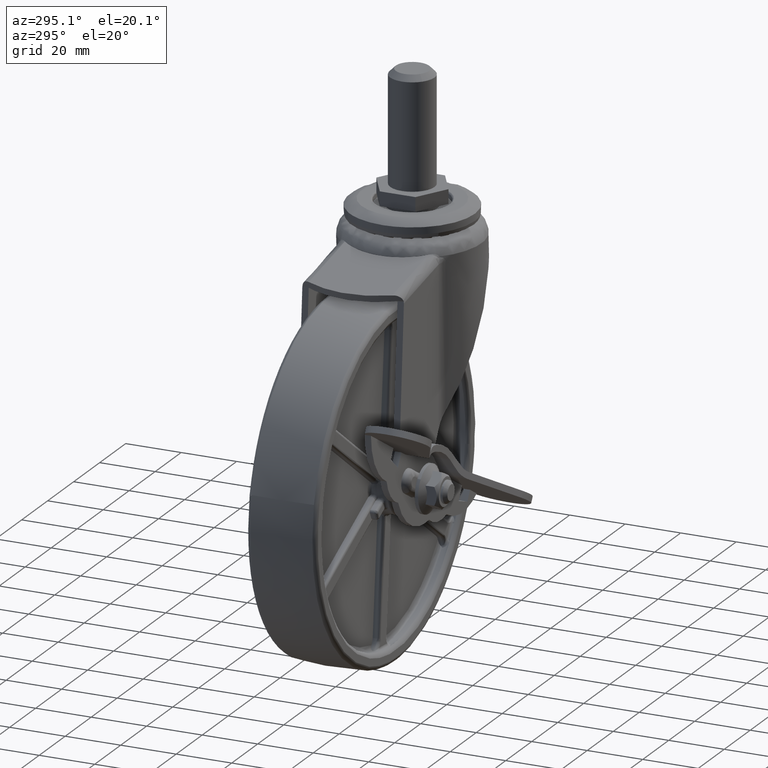
[diagram: clean part render]
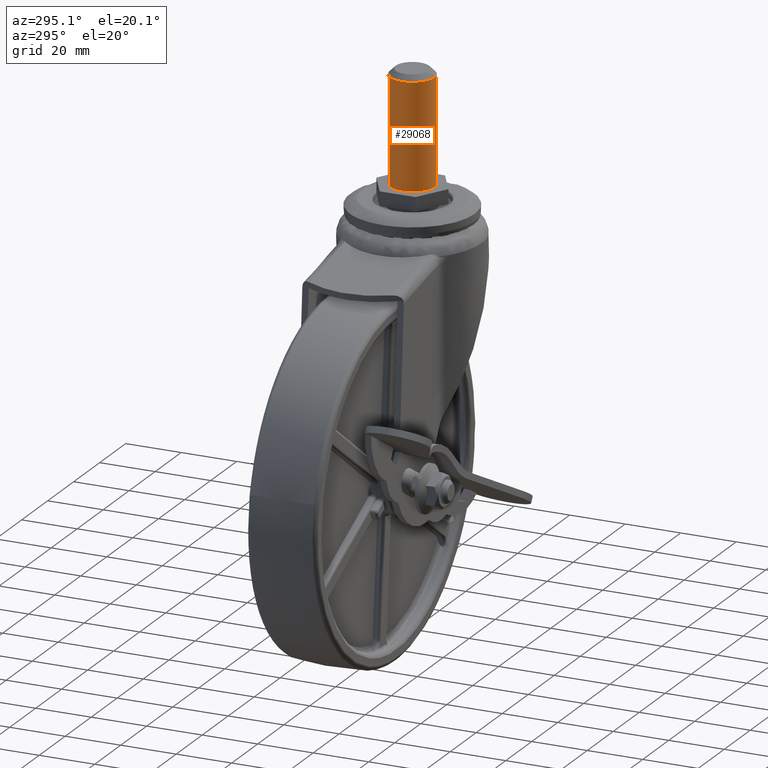
[diagram: same view with one face highlighted and labeled with its STEP entity id]
A machine part, auxiliary view. The second image highlights one B-rep face of the part: STEP entity #29068.
In plain terms, the highlighted face is a freeform B-spline surface patch.
Its self-contained STEP definition (entity closure, byte-faithful):
#28874=CARTESIAN_POINT('',(32.891555400299211,5.165936060456310,127.500003999999000));
#28875=VERTEX_POINT('',#28874);
#28903=CARTESIAN_POINT('',(44.802994651599420,-5.506836305203693,127.500004290883300));
#28904=VERTEX_POINT('',#28903);
#28914=CARTESIAN_POINT('',(44.802994607072861,-5.506836140836031,89.500003999999990));
#28915=VERTEX_POINT('',#28914);
#28916=CARTESIAN_POINT('',(44.802994651599420,-5.506836305203693,127.500004290883300));
#28917=CARTESIAN_POINT('',(44.802994607072861,-5.506836140836031,89.500003999999990));
#28918=QUASI_UNIFORM_CURVE('',1,(#28916,#28917),.UNSPECIFIED.,.F.,.U.);
#28919=EDGE_CURVE('',#28904,#28915,#28918,.T.);
#28948=CARTESIAN_POINT('',(32.891555399062753,5.165936058994264,89.500003999999990));
#28949=VERTEX_POINT('',#28948);
#28959=CARTESIAN_POINT('',(32.891555400299211,5.165936060456310,127.500003999999000));
#28960=CARTESIAN_POINT('',(32.891555399062753,5.165936058994264,89.500003999999990));
#28961=QUASI_UNIFORM_CURVE('',1,(#28959,#28960),.UNSPECIFIED.,.F.,.U.);
#28962=EDGE_CURVE('',#28875,#28949,#28961,.T.);
#28967=CARTESIAN_POINT('',(44.802994968098297,-5.506836605550030,128.450004000000010));
#28968=CARTESIAN_POINT('',(39.296158362548269,-11.309831573648330,128.450004000000010));
#28969=CARTESIAN_POINT('',(33.493163394449972,-5.802994968098299,128.450004000000010));
#28970=CARTESIAN_POINT('',(28.013085134599439,-0.602594876675613,128.450004000000010));
#28971=CARTESIAN_POINT('',(32.891554856476283,5.165936307056203,128.450004000000060));
#28972=CARTESIAN_POINT('',(44.802994968098297,-5.506836605550030,88.526253999999994));
#28973=CARTESIAN_POINT('',(39.296158362548269,-11.309831573648330,88.526253999999994));
#28974=CARTESIAN_POINT('',(33.493163394449972,-5.802994968098299,88.526253999999994));
#28975=CARTESIAN_POINT('',(28.013085134599439,-0.602594876675613,88.526253999999994));
#28976=CARTESIAN_POINT('',(32.891554856476283,5.165936307056203,88.526254000000009));
#28984=(BOUNDED_SURFACE()B_SPLINE_SURFACE(2,1,((#28967,#28972),(#28968,#28973),(#28969,#28974),(#28970,#28975),(#28971,#28976)),.UNSPECIFIED.,.F.,.F.,.U.)B_SPLINE_SURFACE_WITH_KNOTS((3,2,3),(2,2),(0.0,13.254833995939030,25.979474632040500),(0.0,39.923750000000027),.UNSPECIFIED.)GEOMETRIC_REPRESENTATION_ITEM()RATIONAL_B_SPLINE_SURFACE(((1.0,1.0),(0.707106781186548,0.707106781186548),(1.0,1.0),(0.718822509939086,0.718822509939086),(0.977505800795127,0.977505800795127)))REPRESENTATION_ITEM('')SURFACE());
#28985=CARTESIAN_POINT('',(31.0,0.0,127.500004000000000));
#28986=VERTEX_POINT('',#28985);
#28987=CARTESIAN_POINT('',(31.0,0.0,127.500004000000000));
#28988=CARTESIAN_POINT('',(30.999741009083419,0.731276915956539,127.500004000000100));
#28989=CARTESIAN_POINT('',(31.165640615040001,1.930353723124835,127.500003999999000));
#28990=CARTESIAN_POINT('',(31.831111514098779,3.687809403847290,127.500004000000000));
#28991=CARTESIAN_POINT('',(32.456989147013502,4.652358971589599,127.500003999998800));
#28992=CARTESIAN_POINT('',(32.891555400299211,5.165936060456310,127.500003999999000));
#28993=B_SPLINE_CURVE_WITH_KNOTS('',3,(#28987,#28988,#28989,#28990,#28991,#28992),.UNSPECIFIED.,.F.,.U.,(4,1,1,4),(0.000000041065848,2.193746543927850,3.597737294761727,5.615985744739001),.UNSPECIFIED.);
#28994=EDGE_CURVE('',#28986,#28875,#28993,.T.);
#28995=ORIENTED_EDGE('',*,*,#28994,.T.);
#28996=ORIENTED_EDGE('',*,*,#28962,.T.);
#28997=CARTESIAN_POINT('',(31.0,0.0,89.500003999999990));
#28998=VERTEX_POINT('',#28997);
#28999=CARTESIAN_POINT('',(31.0,0.0,89.500003999999990));
#29000=CARTESIAN_POINT('',(30.999722638828160,0.731279246549132,89.500003999999961));
#29001=CARTESIAN_POINT('',(31.165654468180261,1.930351522992463,89.500004000000089));
#29002=CARTESIAN_POINT('',(31.831110397767780,3.687810263340322,89.500003999999919));
#29003=CARTESIAN_POINT('',(32.456987837102503,4.652358745875337,89.500004000000160));
#29004=CARTESIAN_POINT('',(32.891555399062753,5.165936058994264,89.500003999999990));
#29005=B_SPLINE_CURVE_WITH_KNOTS('',3,(#28999,#29000,#29001,#29002,#29003,#29004),.UNSPECIFIED.,.F.,.U.,(4,1,1,4),(0.000000041065170,2.193746543179548,3.597737293534894,5.615985742824211),.UNSPECIFIED.);
#29006=EDGE_CURVE('',#28998,#28949,#29005,.T.);
#29007=ORIENTED_EDGE('',*,*,#29006,.F.);
#29008=CARTESIAN_POINT('',(38.999997669740161,-7.999999999999661,89.500003999999990));
#29009=VERTEX_POINT('',#29008);
#29010=CARTESIAN_POINT('',(38.999997669740161,-7.999999999999661,89.500003999999990));
#29011=CARTESIAN_POINT('',(38.280021037672093,-8.000272000232151,89.500003999999763));
#29012=CARTESIAN_POINT('',(37.167540418412443,-7.848700668260584,89.500004000000303));
#29013=CARTESIAN_POINT('',(35.437278680212209,-7.229770488544957,89.500004000000075));
#29014=CARTESIAN_POINT('',(34.031548632147683,-6.363622388496064,89.500003999999777));
#29015=CARTESIAN_POINT('',(32.822581052295639,-5.154345356633712,89.500004000000416));
#29016=CARTESIAN_POINT('',(31.986427436621600,-3.935551333321492,89.500003999999791));
#29017=CARTESIAN_POINT('',(31.230068943550329,-2.257720141809407,89.500004000000160));
#29018=CARTESIAN_POINT('',(30.999479842785650,-0.883645695056819,89.500003999999919));
#29019=CARTESIAN_POINT('',(31.0,0.0,89.500003999999990));
#29020=B_SPLINE_CURVE_WITH_KNOTS('',3,(#29010,#29011,#29012,#29013,#29014,#29015,#29016,#29017,#29018,#29019),.UNSPECIFIED.,.F.,.U.,(4,1,1,1,1,1,1,4),(0.000000231908469,2.159836106066814,3.337968000646214,5.497825991533676,7.068617065430694,8.443056776689511,9.915725970096217,12.566448149636310),.UNSPECIFIED.);
#29021=EDGE_CURVE('',#29009,#28998,#29020,.T.);
#29022=ORIENTED_EDGE('',*,*,#29021,.F.);
#29023=CARTESIAN_POINT('',(44.802994607072861,-5.506836140836031,89.500003999999990));
#29024=CARTESIAN_POINT('',(44.453868778142592,-5.874802540967743,89.500004000000132));
#29025=CARTESIAN_POINT('',(43.608499978644772,-6.610961697086969,89.500003999999720));
#29026=CARTESIAN_POINT('',(42.150747907632422,-7.421193777131778,89.500004000000388));
#29027=CARTESIAN_POINT('',(40.555518993630749,-7.899982660686531,89.500003999999393));
#29028=CARTESIAN_POINT('',(39.507234663307393,-8.000046217338481,89.500004000000331));
#29029=CARTESIAN_POINT('',(38.999997669740161,-7.999999999999661,89.500003999999990));
#29030=B_SPLINE_CURVE_WITH_KNOTS('',3,(#29023,#29024,#29025,#29026,#29027,#29028,#29029),.UNSPECIFIED.,.F.,.U.,(4,1,1,1,4),(0.000000066162279,1.521717542619904,3.347746659289445,4.970953023134399,6.492670499640424),.UNSPECIFIED.);
#29031=EDGE_CURVE('',#28915,#29009,#29030,.T.);
#29032=ORIENTED_EDGE('',*,*,#29031,.F.);
#29033=ORIENTED_EDGE('',*,*,#28919,.F.);
#29034=CARTESIAN_POINT('',(38.999997669740161,-7.999999999999661,127.500004000000000));
#29035=VERTEX_POINT('',#29034);
#29036=CARTESIAN_POINT('',(44.802994651599420,-5.506836305203693,127.500004290883300));
#29037=CARTESIAN_POINT('',(44.221361403948727,-6.120429454898117,127.500004261728190));
#29038=CARTESIAN_POINT('',(43.024301022620342,-7.035263841631398,127.500004201723900));
#29039=CARTESIAN_POINT('',(40.995054632884283,-7.831800308744604,127.500004100005300));
#29040=CARTESIAN_POINT('',(39.676329041673910,-8.000152889722246,127.500004033902000));
#29041=CARTESIAN_POINT('',(38.999997669740161,-7.999999999999661,127.500004000000000));
#29042=B_SPLINE_CURVE_WITH_KNOTS('',3,(#29036,#29037,#29038,#29039,#29040,#29041),.UNSPECIFIED.,.F.,.U.,(4,1,1,4),(0.000000066161376,2.536221568342143,4.463700403454018,6.492670470079656),.UNSPECIFIED.);
#29043=EDGE_CURVE('',#28904,#29035,#29042,.T.);
#29044=ORIENTED_EDGE('',*,*,#29043,.T.);
#29045=CARTESIAN_POINT('',(33.834063136495558,-6.108445801493146,127.500003712760600));
#29046=VERTEX_POINT('',#29045);
#29047=CARTESIAN_POINT('',(38.999997669740161,-7.999999999999661,127.500004000000000));
#29048=CARTESIAN_POINT('',(38.385736521997238,-8.000138704191585,127.500003965845490));
#29049=CARTESIAN_POINT('',(37.391329619784230,-7.884837621389556,127.500003910553400));
#29050=CARTESIAN_POINT('',(35.599219827388168,-7.327424417909536,127.500003810908790));
#29051=CARTESIAN_POINT('',(34.503787950633523,-6.675570766059534,127.500003749998400));
#29052=CARTESIAN_POINT('',(33.834063136495558,-6.108445801493146,127.500003712760600));
#29053=B_SPLINE_CURVE_WITH_KNOTS('',3,(#29047,#29048,#29049,#29050,#29051,#29052),.UNSPECIFIED.,.F.,.U.,(4,1,1,4),(0.000000041078148,1.842752049250024,2.983478675351189,5.615983755669661),.UNSPECIFIED.);
#29054=EDGE_CURVE('',#29035,#29046,#29053,.T.);
#29055=ORIENTED_EDGE('',*,*,#29054,.T.);
#29056=CARTESIAN_POINT('',(33.834063136495558,-6.108445801493146,127.500003712760600));
#29057=CARTESIAN_POINT('',(33.419412445936608,-5.757853449209471,127.500003729246600));
#29058=CARTESIAN_POINT('',(32.586103424236292,-4.893251258376645,127.500003769902900));
#29059=CARTESIAN_POINT('',(31.662619532512021,-3.363280231393217,127.500003841848000));
#29060=CARTESIAN_POINT('',(31.114664732645839,-1.665197395830787,127.500003921696010));
#29061=CARTESIAN_POINT('',(30.999931568887170,-0.543001895362666,127.500003974467110));
#29062=CARTESIAN_POINT('',(31.0,0.0,127.500004000000000));
#29063=B_SPLINE_CURVE_WITH_KNOTS('',3,(#29056,#29057,#29058,#29059,#29060,#29061,#29062),.UNSPECIFIED.,.F.,.U.,(4,1,1,1,4),(0.000000071440222,1.629014429842135,3.583800517483438,5.321453008955560,6.950466720880406),.UNSPECIFIED.);
#29064=EDGE_CURVE('',#29046,#28986,#29063,.T.);
#29065=ORIENTED_EDGE('',*,*,#29064,.T.);
#29066=EDGE_LOOP('',(#28995,#28996,#29007,#29022,#29032,#29033,#29044,#29055,#29065));
#29067=FACE_OUTER_BOUND('',#29066,.T.);
#29068=ADVANCED_FACE('',(#29067),#28984,.T.);